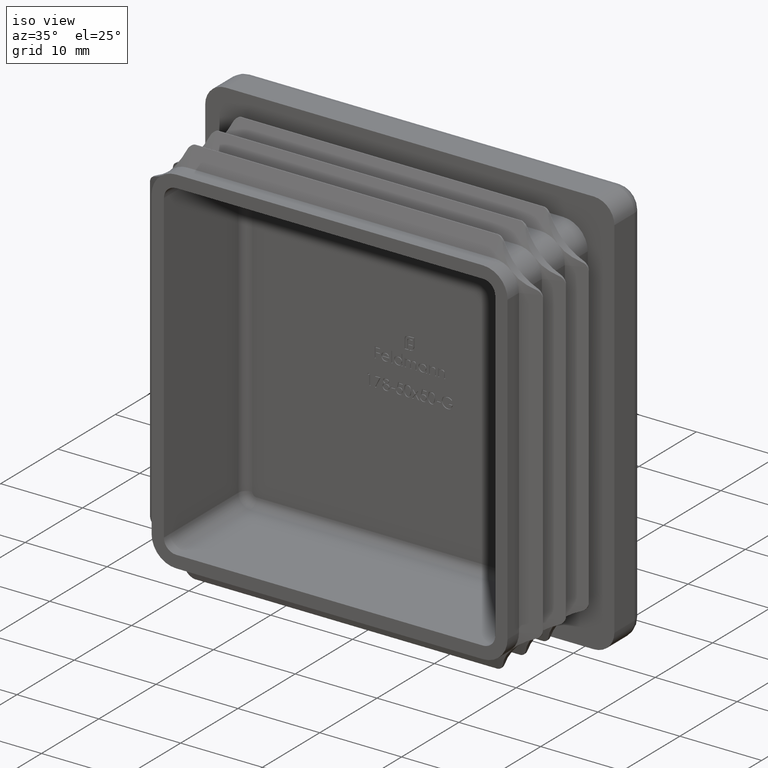
[diagram: clean part render]
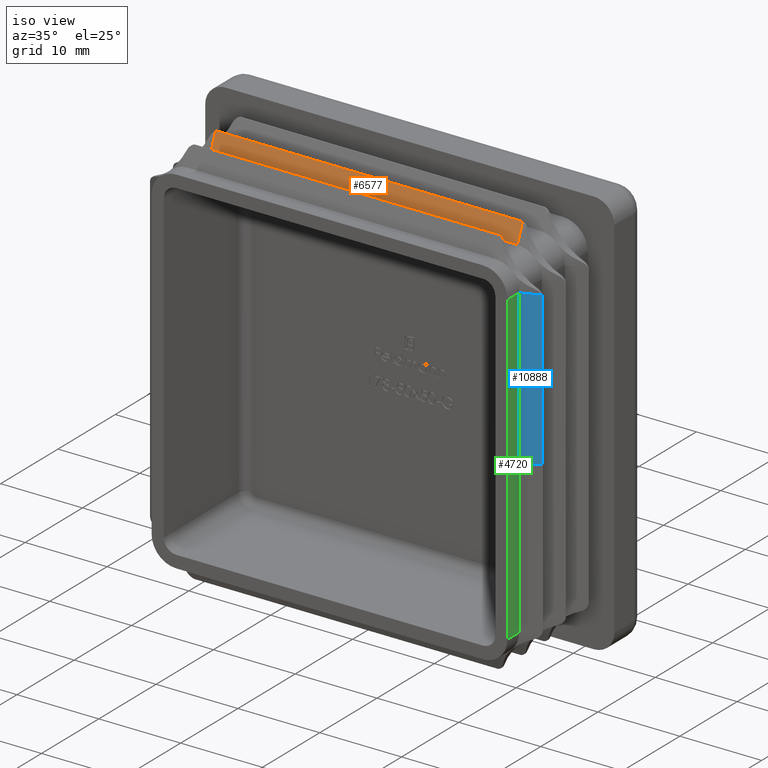
[diagram: same view with three faces highlighted in distinct colors, each labeled with its STEP entity id]
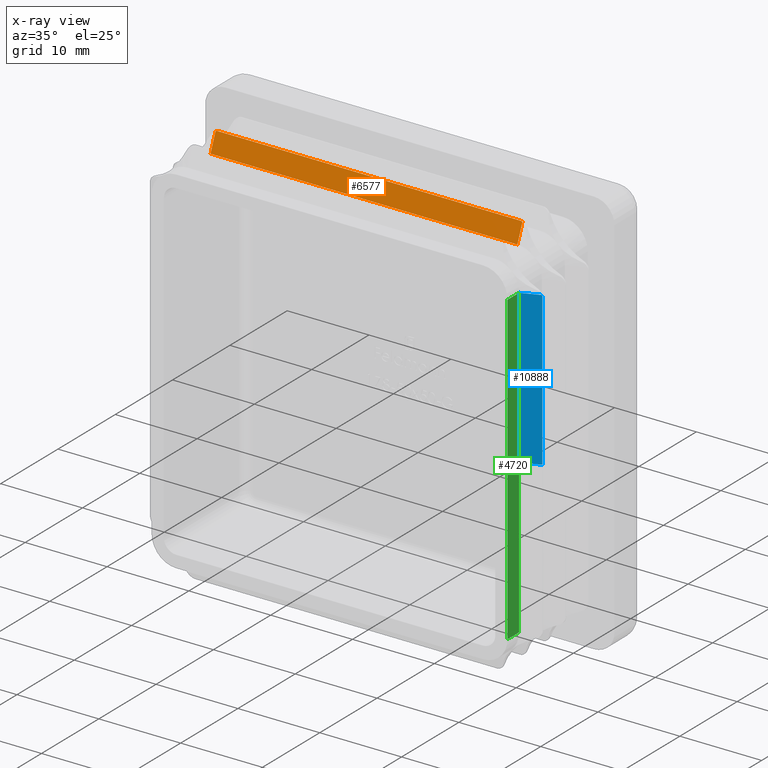
[diagram: x-ray of the same camera — body ghosted, the three highlighted faces saturated]
A machine part, iso view with three faces highlighted in distinct colors.
The next image is the same camera in x-ray (body ghosted, the three faces saturated) — at least one of them is partly hidden behind the body in this view.
Their STEP definitions:

[orange] entity #6577 — the highlighted planar face has unit normal (0, 0.9261, -0.3772).
#298 = CARTESIAN_POINT ( 'NONE',  ( 18.58258589888725609, -7.096306707551701010, 23.96885971462464937 ) ) ;
#1195 = VECTOR ( 'NONE', #10421, 1000.000000000000341 ) ;
#1911 = VECTOR ( 'NONE', #10971, 1000.000000000000000 ) ;
#2147 = ORIENTED_EDGE ( 'NONE', *, *, #15058, .F. ) ;
#2343 = CARTESIAN_POINT ( 'NONE',  ( -18.69602062712406720, -7.110327619861051218, 23.93443383391327117 ) ) ;
#3214 = VERTEX_POINT ( 'NONE', #12775 ) ;
#3450 = VERTEX_POINT ( 'NONE', #18940 ) ;
#3865 = CARTESIAN_POINT ( 'NONE',  ( 18.74999999999999645, -8.000000000000017764, 21.75000000000000000 ) ) ;
#3885 = DIRECTION ( 'NONE',  ( 1.000000000000000000, 0.000000000000000000, 0.000000000000000000 ) ) ;
#4018 = CARTESIAN_POINT ( 'NONE',  ( -18.58258589888725609, -7.096306707551701010, 23.96885971462464937 ) ) ;
#4768 = VECTOR ( 'NONE', #3885, 1000.000000000000000 ) ;
#5476 = VERTEX_POINT ( 'NONE', #17488 ) ;
#5663 =( BOUNDED_CURVE ( )  B_SPLINE_CURVE ( 3, ( #298, #8507, #10051, #18365 ),
 .UNSPECIFIED., .F., .F. ) 
 B_SPLINE_CURVE_WITH_KNOTS ( ( 4, 4 ),
 ( 3.391805605384498712, 3.569562260223783756 ),
 .UNSPECIFIED. ) 
 CURVE ( )  GEOMETRIC_REPRESENTATION_ITEM ( )  RATIONAL_B_SPLINE_CURVE ( ( 1.000000000000000000, 0.9973686138443081939, 0.9973686138443081939, 1.000000000000000000 ) ) 
 REPRESENTATION_ITEM ( '' )  );
#6577 = ADVANCED_FACE ( 'NONE', ( #20241 ), #12223, .F. ) ;
#6704 = VECTOR ( 'NONE', #12560, 1000.000000000000341 ) ;
#7240 = CARTESIAN_POINT ( 'NONE',  ( -18.64006869561519508, -7.102289953917582999, 23.95416890698574619 ) ) ;
#8058 = VERTEX_POINT ( 'NONE', #13632 ) ;
#8507 = CARTESIAN_POINT ( 'NONE',  ( 18.64006869561519508, -7.102289953917582999, 23.95416890698574619 ) ) ;
#8535 = ORIENTED_EDGE ( 'NONE', *, *, #10304, .T. ) ;
#8866 = DIRECTION ( 'NONE',  ( 0.000000000000000000, 0.9261341510340127536, -0.3771942924919577944 ) ) ;
#9148 = ORIENTED_EDGE ( 'NONE', *, *, #12360, .T. ) ;
#9687 = VERTEX_POINT ( 'NONE', #3865 ) ;
#10051 = CARTESIAN_POINT ( 'NONE',  ( 18.69602062712406720, -7.110327619861051218, 23.93443383391327117 ) ) ;
#10304 = EDGE_CURVE ( 'NONE', #9687, #8058, #11126, .T. ) ;
#10421 = DIRECTION ( 'NONE',  ( 0.000000000000000000, 0.3771942924919577389, 0.9261341510340126426 ) ) ;
#10523 = ORIENTED_EDGE ( 'NONE', *, *, #19117, .T. ) ;
#10971 = DIRECTION ( 'NONE',  ( 1.000000000000000000, 0.000000000000000000, 0.000000000000000000 ) ) ;
#11126 = LINE ( 'NONE', #15851, #6704 ) ;
#12223 = PLANE ( 'NONE',  #18374 ) ;
#12360 = EDGE_CURVE ( 'NONE', #5476, #9687, #19655, .T. ) ;
#12560 = DIRECTION ( 'NONE',  ( 0.000000000000000000, 0.3771942924919577389, 0.9261341510340126426 ) ) ;
#12775 = CARTESIAN_POINT ( 'NONE',  ( 18.58258589888725609, -7.096306707551701010, 23.96885971462464937 ) ) ;
#13078 = ORIENTED_EDGE ( 'NONE', *, *, #21152, .F. ) ;
#13632 = CARTESIAN_POINT ( 'NONE',  ( 18.74999999999999645, -7.120356254773446025, 23.90981028720141666 ) ) ;
#13842 = CARTESIAN_POINT ( 'NONE',  ( -18.74999999999999645, -7.096306707551701010, 23.96885971462464937 ) ) ;
#14110 = LINE ( 'NONE', #13842, #4768 ) ;
#14533 = CARTESIAN_POINT ( 'NONE',  ( -18.74999999999999645, -7.120356254773446025, 23.90981028720141666 ) ) ;
#14947 = ORIENTED_EDGE ( 'NONE', *, *, #15284, .F. ) ;
#15058 = EDGE_CURVE ( 'NONE', #3214, #8058, #5663, .T. ) ;
#15284 = EDGE_CURVE ( 'NONE', #3450, #3214, #14110, .T. ) ;
#15543 = LINE ( 'NONE', #17218, #1195 ) ;
#15581 = DIRECTION ( 'NONE',  ( 0.000000000000000000, 0.3771942924919577389, 0.9261341510340126426 ) ) ;
#15666 = CARTESIAN_POINT ( 'NONE',  ( -18.74999999999999645, -7.120356254773446025, 23.90981028720141666 ) ) ;
#15851 = CARTESIAN_POINT ( 'NONE',  ( 18.74999999999999645, -7.096306707551701010, 23.96885971462464937 ) ) ;
#17108 = CARTESIAN_POINT ( 'NONE',  ( -18.74999999999999645, -7.096306707551701010, 23.96885971462464937 ) ) ;
#17218 = CARTESIAN_POINT ( 'NONE',  ( -18.74999999999999645, -7.096306707551701010, 23.96885971462464937 ) ) ;
#17242 = CARTESIAN_POINT ( 'NONE',  ( -18.74999999999999645, -8.000000000000000000, 21.75000000000003908 ) ) ;
#17301 = VERTEX_POINT ( 'NONE', #14533 ) ;
#17488 = CARTESIAN_POINT ( 'NONE',  ( -18.75000000000000000, -8.000000000000017764, 21.75000000000000000 ) ) ;
#18198 =( BOUNDED_CURVE ( )  B_SPLINE_CURVE ( 3, ( #4018, #7240, #2343, #15666 ),
 .UNSPECIFIED., .F., .F. ) 
 B_SPLINE_CURVE_WITH_KNOTS ( ( 4, 4 ),
 ( 3.391805605384498712, 3.569562260223783756 ),
 .UNSPECIFIED. ) 
 CURVE ( )  GEOMETRIC_REPRESENTATION_ITEM ( )  RATIONAL_B_SPLINE_CURVE ( ( 1.000000000000000000, 0.9973686138443081939, 0.9973686138443081939, 1.000000000000000000 ) ) 
 REPRESENTATION_ITEM ( '' )  );
#18365 = CARTESIAN_POINT ( 'NONE',  ( 18.74999999999999645, -7.120356254773446025, 23.90981028720141666 ) ) ;
#18374 = AXIS2_PLACEMENT_3D ( 'NONE', #17108, #8866, #15581 ) ;
#18940 = CARTESIAN_POINT ( 'NONE',  ( -18.58258589888725609, -7.096306707551701010, 23.96885971462464937 ) ) ;
#18998 = EDGE_LOOP ( 'NONE', ( #2147, #14947, #10523, #13078, #9148, #8535 ) ) ;
#19117 = EDGE_CURVE ( 'NONE', #3450, #17301, #18198, .T. ) ;
#19655 = LINE ( 'NONE', #17242, #1911 ) ;
#20241 = FACE_OUTER_BOUND ( 'NONE', #18998, .T. ) ;
#21152 = EDGE_CURVE ( 'NONE', #5476, #17301, #15543, .T. ) ;

[blue] entity #10888 — the highlighted planar face has unit normal (-0.3772, 0.9261, 0).
#137 = FACE_OUTER_BOUND ( 'NONE', #4870, .T. ) ;
#261 = VECTOR ( 'NONE', #15717, 1000.000000000000000 ) ;
#550 = VECTOR ( 'NONE', #13363, 1000.000000000000000 ) ;
#1067 = CARTESIAN_POINT ( 'NONE',  ( 23.96885971462469200, -11.09630670755170101, 0.000000000000000000 ) ) ;
#1082 = DIRECTION ( 'NONE',  ( 0.9261341510340126426, 0.3771942924919577389, 0.000000000000000000 ) ) ;
#1498 =( BOUNDED_CURVE ( )  B_SPLINE_CURVE ( 3, ( #18224, #8191, #18159, #5006 ),
 .UNSPECIFIED., .F., .F. ) 
 B_SPLINE_CURVE_WITH_KNOTS ( ( 4, 4 ),
 ( 2.713623046955982332, 2.891379701795249169 ),
 .UNSPECIFIED. ) 
 CURVE ( )  GEOMETRIC_REPRESENTATION_ITEM ( )  RATIONAL_B_SPLINE_CURVE ( ( 1.000000000000000000, 0.9973686138443086380, 0.9973686138443086380, 1.000000000000000000 ) ) 
 REPRESENTATION_ITEM ( '' )  );
#1557 = VECTOR ( 'NONE', #5330, 1000.000000000000341 ) ;
#1986 = ORIENTED_EDGE ( 'NONE', *, *, #14391, .F. ) ;
#2389 = VECTOR ( 'NONE', #1082, 1000.000000000000341 ) ;
#3352 = DIRECTION ( 'NONE',  ( -0.3771942924919577944, 0.9261341510340127536, 0.000000000000000000 ) ) ;
#4870 = EDGE_LOOP ( 'NONE', ( #8428, #6900, #9077, #17311, #1986 ) ) ;
#4899 = EDGE_CURVE ( 'NONE', #7049, #19973, #12280, .T. ) ;
#5006 = CARTESIAN_POINT ( 'NONE',  ( 23.96885971462469200, -11.09630670755170101, 18.58258589888726320 ) ) ;
#5303 = EDGE_CURVE ( 'NONE', #7049, #9085, #9378, .T. ) ;
#5330 = DIRECTION ( 'NONE',  ( 0.9261341510340126426, 0.3771942924919577389, 0.000000000000000000 ) ) ;
#6138 = AXIS2_PLACEMENT_3D ( 'NONE', #11577, #3352, #21380 ) ;
#6900 = ORIENTED_EDGE ( 'NONE', *, *, #4899, .F. ) ;
#7049 = VERTEX_POINT ( 'NONE', #18431 ) ;
#8191 = CARTESIAN_POINT ( 'NONE',  ( 23.93443383391333157, -11.11032761986104056, 18.69602062712406720 ) ) ;
#8340 = CARTESIAN_POINT ( 'NONE',  ( 23.96885971462469200, -11.09630670755170101, 18.74999999999999645 ) ) ;
#8428 = ORIENTED_EDGE ( 'NONE', *, *, #14948, .F. ) ;
#9077 = ORIENTED_EDGE ( 'NONE', *, *, #5303, .T. ) ;
#9085 = VERTEX_POINT ( 'NONE', #20444 ) ;
#9378 = LINE ( 'NONE', #20405, #261 ) ;
#9681 = LINE ( 'NONE', #8340, #550 ) ;
#10888 = ADVANCED_FACE ( 'NONE', ( #137 ), #11373, .F. ) ;
#11373 = PLANE ( 'NONE',  #6138 ) ;
#11577 = CARTESIAN_POINT ( 'NONE',  ( 23.96885971462469200, -11.09630670755170101, 18.74999999999999645 ) ) ;
#11920 = CARTESIAN_POINT ( 'NONE',  ( 23.96885971462469200, -11.09630670755170101, 0.000000000000000000 ) ) ;
#12280 = LINE ( 'NONE', #14052, #2389 ) ;
#13363 = DIRECTION ( 'NONE',  ( 0.000000000000000000, 0.000000000000000000, -1.000000000000000000 ) ) ;
#14052 = CARTESIAN_POINT ( 'NONE',  ( 23.96885971462469200, -11.09630670755170101, 18.74999999999999645 ) ) ;
#14272 = VERTEX_POINT ( 'NONE', #1067 ) ;
#14391 = EDGE_CURVE ( 'NONE', #20045, #14272, #9681, .T. ) ;
#14440 = CARTESIAN_POINT ( 'NONE',  ( 23.96885971462469200, -11.09630670755170101, 18.58258589888726320 ) ) ;
#14948 = EDGE_CURVE ( 'NONE', #19973, #20045, #1498, .T. ) ;
#15717 = DIRECTION ( 'NONE',  ( 0.000000000000000000, 0.000000000000000000, -1.000000000000000000 ) ) ;
#15779 = CARTESIAN_POINT ( 'NONE',  ( 23.90981028720149126, -11.12035625477343181, 18.74999999999999645 ) ) ;
#16135 = EDGE_CURVE ( 'NONE', #9085, #14272, #19023, .T. ) ;
#17311 = ORIENTED_EDGE ( 'NONE', *, *, #16135, .T. ) ;
#18159 = CARTESIAN_POINT ( 'NONE',  ( 23.95416890698579593, -11.10228995391757678, 18.64006869561519864 ) ) ;
#18224 = CARTESIAN_POINT ( 'NONE',  ( 23.90981028720149126, -11.12035625477343181, 18.74999999999999645 ) ) ;
#18431 = CARTESIAN_POINT ( 'NONE',  ( 21.75000000000000000, -12.00000000000003553, 18.74999999999999645 ) ) ;
#19023 = LINE ( 'NONE', #11920, #1557 ) ;
#19973 = VERTEX_POINT ( 'NONE', #15779 ) ;
#20045 = VERTEX_POINT ( 'NONE', #14440 ) ;
#20405 = CARTESIAN_POINT ( 'NONE',  ( 21.75000000000008171, -12.00000000000000000, 18.74999999999999645 ) ) ;
#20444 = CARTESIAN_POINT ( 'NONE',  ( 21.74999999999999645, -12.00000000000003553, 0.000000000000000000 ) ) ;
#21380 = DIRECTION ( 'NONE',  ( -0.9261341510340126426, -0.3771942924919577389, 0.000000000000000000 ) ) ;

[green] entity #4720 — the highlighted planar face has unit normal (-1, 0, -0).
#261 = VECTOR ( 'NONE', #15717, 1000.000000000000000 ) ;
#1555 = VERTEX_POINT ( 'NONE', #7081 ) ;
#1652 = CARTESIAN_POINT ( 'NONE',  ( 21.75000000000000000, -14.00000000000000000, 18.74999999999999645 ) ) ;
#2323 = LINE ( 'NONE', #8582, #7528 ) ;
#2569 = EDGE_CURVE ( 'NONE', #2634, #7049, #18115, .T. ) ;
#2634 = VERTEX_POINT ( 'NONE', #13450 ) ;
#3232 = ORIENTED_EDGE ( 'NONE', *, *, #6645, .F. ) ;
#4086 = CARTESIAN_POINT ( 'NONE',  ( 21.75000000000000000, -14.00000000000000000, -18.75000000000001066 ) ) ;
#4334 = VECTOR ( 'NONE', #15580, 1000.000000000000000 ) ;
#4720 = ADVANCED_FACE ( 'NONE', ( #15927 ), #18032, .F. ) ;
#5303 = EDGE_CURVE ( 'NONE', #7049, #9085, #9378, .T. ) ;
#5537 = EDGE_LOOP ( 'NONE', ( #3232, #19386, #6331, #8557, #17585 ) ) ;
#6331 = ORIENTED_EDGE ( 'NONE', *, *, #2569, .F. ) ;
#6645 = EDGE_CURVE ( 'NONE', #9085, #18546, #2323, .T. ) ;
#7049 = VERTEX_POINT ( 'NONE', #18431 ) ;
#7081 = CARTESIAN_POINT ( 'NONE',  ( 21.75000000000000000, -14.00000000000000000, -18.75000000000001066 ) ) ;
#7528 = VECTOR ( 'NONE', #16903, 1000.000000000000000 ) ;
#7531 = DIRECTION ( 'NONE',  ( -1.000000000000000000, 0.000000000000000000, -9.251858538542970348E-17 ) ) ;
#8300 = DIRECTION ( 'NONE',  ( -0.000000000000000000, 1.000000000000000000, -0.000000000000000000 ) ) ;
#8438 = VECTOR ( 'NONE', #8300, 1000.000000000000000 ) ;
#8557 = ORIENTED_EDGE ( 'NONE', *, *, #15462, .F. ) ;
#8582 = CARTESIAN_POINT ( 'NONE',  ( 21.75000000000008171, -12.00000000000000000, 0.000000000000000000 ) ) ;
#9085 = VERTEX_POINT ( 'NONE', #20444 ) ;
#9378 = LINE ( 'NONE', #20405, #261 ) ;
#9581 = EDGE_CURVE ( 'NONE', #1555, #18546, #20428, .T. ) ;
#9995 = CARTESIAN_POINT ( 'NONE',  ( 21.75000000000000000, -12.00000000000003553, -18.75000000000001066 ) ) ;
#13450 = CARTESIAN_POINT ( 'NONE',  ( 21.75000000000000000, -14.00000000000000000, 18.74999999999999645 ) ) ;
#15462 = EDGE_CURVE ( 'NONE', #1555, #2634, #21372, .T. ) ;
#15580 = DIRECTION ( 'NONE',  ( -0.000000000000000000, 1.000000000000000000, -0.000000000000000000 ) ) ;
#15717 = DIRECTION ( 'NONE',  ( 0.000000000000000000, 0.000000000000000000, -1.000000000000000000 ) ) ;
#15927 = FACE_OUTER_BOUND ( 'NONE', #5537, .T. ) ;
#16903 = DIRECTION ( 'NONE',  ( 0.000000000000000000, 0.000000000000000000, -1.000000000000000000 ) ) ;
#16972 = VECTOR ( 'NONE', #18967, 1000.000000000000000 ) ;
#17484 = CARTESIAN_POINT ( 'NONE',  ( 21.74999999999999645, -14.00000000000000000, 18.74999999999999645 ) ) ;
#17585 = ORIENTED_EDGE ( 'NONE', *, *, #9581, .T. ) ;
#17848 = DIRECTION ( 'NONE',  ( -9.251858538542970348E-17, 0.000000000000000000, 1.000000000000000000 ) ) ;
#18032 = PLANE ( 'NONE',  #20414 ) ;
#18115 = LINE ( 'NONE', #1652, #8438 ) ;
#18431 = CARTESIAN_POINT ( 'NONE',  ( 21.75000000000000000, -12.00000000000003553, 18.74999999999999645 ) ) ;
#18546 = VERTEX_POINT ( 'NONE', #9995 ) ;
#18967 = DIRECTION ( 'NONE',  ( -9.251858538542970348E-17, -0.000000000000000000, 1.000000000000000000 ) ) ;
#19386 = ORIENTED_EDGE ( 'NONE', *, *, #5303, .F. ) ;
#20405 = CARTESIAN_POINT ( 'NONE',  ( 21.75000000000008171, -12.00000000000000000, 18.74999999999999645 ) ) ;
#20414 = AXIS2_PLACEMENT_3D ( 'NONE', #17484, #7531, #17848 ) ;
#20428 = LINE ( 'NONE', #4086, #4334 ) ;
#20444 = CARTESIAN_POINT ( 'NONE',  ( 21.74999999999999645, -12.00000000000003553, 0.000000000000000000 ) ) ;
#20613 = CARTESIAN_POINT ( 'NONE',  ( 21.74999999999999645, -14.00000000000000000, 18.74999999999999645 ) ) ;
#21372 = LINE ( 'NONE', #20613, #16972 ) ;